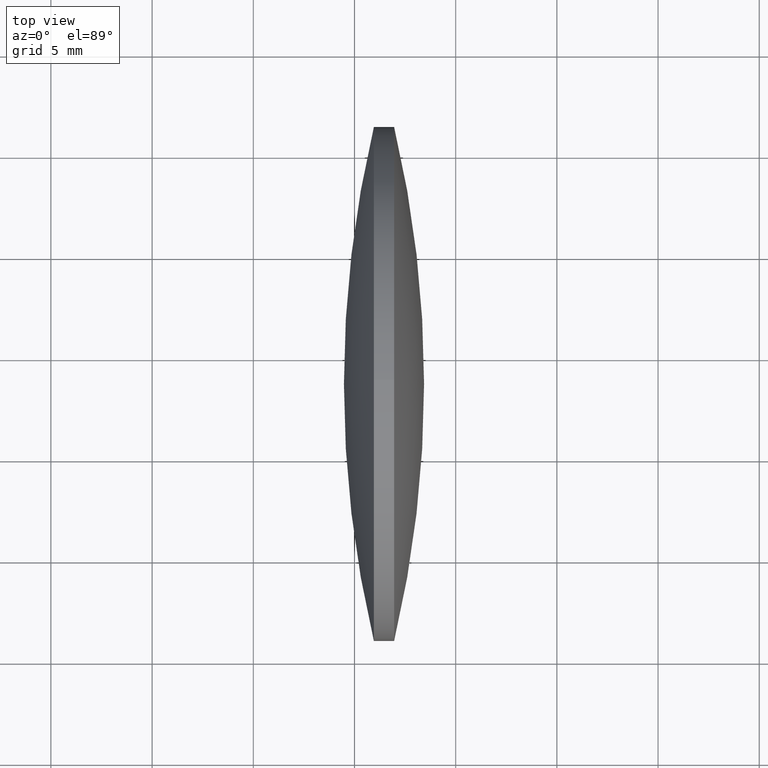
[diagram: clean part render]
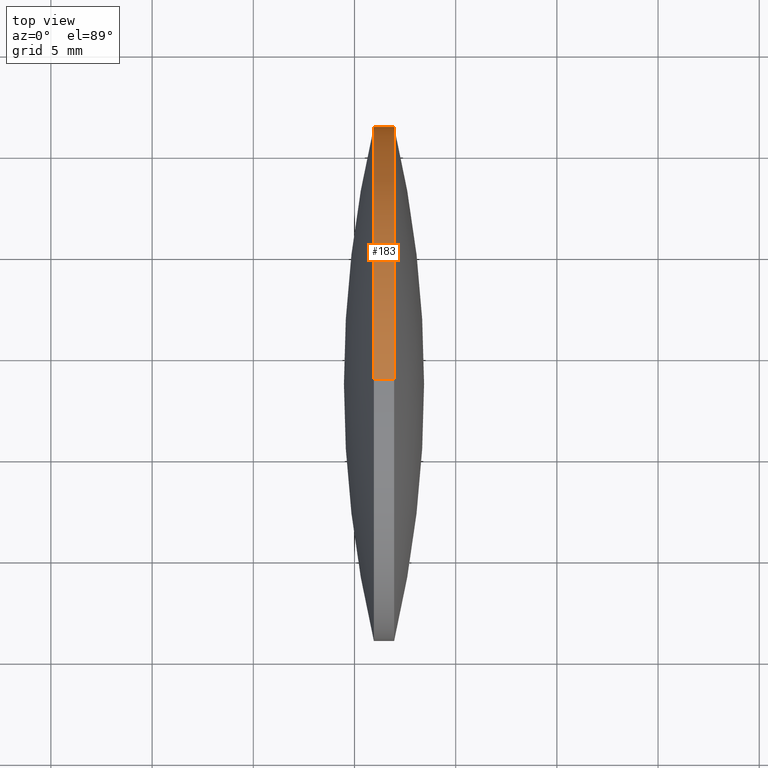
[diagram: same view with one face highlighted and labeled with its STEP entity id]
A machine part, top view. The second image highlights one B-rep face of the part: STEP entity #183.
In plain terms, the highlighted cylindrical surface (partial cylindrical patch) has radius 12.7 mm, axis along (-1, -0, -0).
Its self-contained STEP definition (entity closure, byte-faithful):
#3 = DIRECTION ( 'NONE',  ( 0.0000000000000000000, 0.0000000000000000000, 1.000000000000000000 ) ) ;
#9 = DIRECTION ( 'NONE',  ( 0.0000000000000000000, 0.0000000000000000000, 1.000000000000000000 ) ) ;
#16 = CARTESIAN_POINT ( 'NONE',  ( 79.30540135083715800, 48.61611302318478100, 12.69999999999999600 ) ) ;
#17 = AXIS2_PLACEMENT_3D ( 'NONE', #175, #64, #303 ) ;
#18 = AXIS2_PLACEMENT_3D ( 'NONE', #24, #50, #141 ) ;
#24 = CARTESIAN_POINT ( 'NONE',  ( 79.30540135083715800, 48.61611302318478100, 0.0000000000000000000 ) ) ;
#34 = ORIENTED_EDGE ( 'NONE', *, *, #168, .T. ) ;
#37 = AXIS2_PLACEMENT_3D ( 'NONE', #251, #89, #3 ) ;
#48 = VERTEX_POINT ( 'NONE', #247 ) ;
#49 = ORIENTED_EDGE ( 'NONE', *, *, #269, .F. ) ;
#50 = DIRECTION ( 'NONE',  ( -1.000000000000000000, -0.0000000000000000000, -0.0000000000000000000 ) ) ;
#53 = VERTEX_POINT ( 'NONE', #215 ) ;
#59 = VERTEX_POINT ( 'NONE', #160 ) ;
#64 = DIRECTION ( 'NONE',  ( -1.000000000000000000, -0.0000000000000000000, -0.0000000000000000000 ) ) ;
#68 = EDGE_CURVE ( 'NONE', #295, #185, #208, .T. ) ;
#69 = CARTESIAN_POINT ( 'NONE',  ( 86.95819277466255000, 48.61611302318478100, -12.69999999999999600 ) ) ;
#74 = AXIS2_PLACEMENT_3D ( 'NONE', #272, #190, #9 ) ;
#79 = ORIENTED_EDGE ( 'NONE', *, *, #290, .F. ) ;
#81 = CIRCLE ( 'NONE', #17, 12.69999999999999600 ) ;
#83 = CARTESIAN_POINT ( 'NONE',  ( 79.30540135083715800, 48.61611302318478100, -12.69999999999999600 ) ) ;
#84 = CIRCLE ( 'NONE', #138, 12.69999999999999600 ) ;
#88 = CARTESIAN_POINT ( 'NONE',  ( 85.95819477466253000, 48.61611302318478100, 0.0000000000000000000 ) ) ;
#89 = DIRECTION ( 'NONE',  ( -1.000000000000000000, -0.0000000000000000000, -0.0000000000000000000 ) ) ;
#109 = CIRCLE ( 'NONE', #37, 12.69999999999999600 ) ;
#138 = AXIS2_PLACEMENT_3D ( 'NONE', #88, #277, #274 ) ;
#140 = ORIENTED_EDGE ( 'NONE', *, *, #328, .F. ) ;
#141 = DIRECTION ( 'NONE',  ( 0.0000000000000000000, 0.0000000000000000000, 1.000000000000000000 ) ) ;
#160 = CARTESIAN_POINT ( 'NONE',  ( 85.95819477466253000, 48.61611302318478100, 12.69999999999999600 ) ) ;
#166 = CARTESIAN_POINT ( 'NONE',  ( 86.95819277466255000, 48.61611302318478100, 12.69999999999999600 ) ) ;
#168 = EDGE_CURVE ( 'NONE', #321, #53, #238, .T. ) ;
#175 = CARTESIAN_POINT ( 'NONE',  ( 85.95819477466253000, 48.61611302318478100, 0.0000000000000000000 ) ) ;
#183 = ADVANCED_FACE ( 'NONE', ( #302 ), #199, .T. ) ;
#185 = VERTEX_POINT ( 'NONE', #196 ) ;
#190 = DIRECTION ( 'NONE',  ( -1.000000000000000000, -0.0000000000000000000, -0.0000000000000000000 ) ) ;
#196 = CARTESIAN_POINT ( 'NONE',  ( 85.95819477466253000, 48.61611302318478100, -12.69999999999999600 ) ) ;
#199 = CYLINDRICAL_SURFACE ( 'NONE', #18, 12.69999999999999600 ) ;
#208 = LINE ( 'NONE', #83, #231 ) ;
#213 = ORIENTED_EDGE ( 'NONE', *, *, #219, .T. ) ;
#215 = CARTESIAN_POINT ( 'NONE',  ( 86.95819277466255000, 61.31611302318478400, 1.555301434917136300E-015 ) ) ;
#219 = EDGE_CURVE ( 'NONE', #53, #295, #109, .T. ) ;
#231 = VECTOR ( 'NONE', #345, 1000.000000000000000 ) ;
#232 = DIRECTION ( 'NONE',  ( -1.000000000000000000, -0.0000000000000000000, -0.0000000000000000000 ) ) ;
#238 = CIRCLE ( 'NONE', #74, 12.69999999999999600 ) ;
#247 = CARTESIAN_POINT ( 'NONE',  ( 85.95819477466253000, 61.31611302318474800, 0.0000000000000000000 ) ) ;
#251 = CARTESIAN_POINT ( 'NONE',  ( 86.95819277466255000, 48.61611302318478100, 0.0000000000000000000 ) ) ;
#269 = EDGE_CURVE ( 'NONE', #59, #48, #84, .T. ) ;
#270 = EDGE_LOOP ( 'NONE', ( #213, #324, #79, #49, #140, #34 ) ) ;
#272 = CARTESIAN_POINT ( 'NONE',  ( 86.95819277466255000, 48.61611302318478100, 0.0000000000000000000 ) ) ;
#274 = DIRECTION ( 'NONE',  ( 0.0000000000000000000, 0.0000000000000000000, 1.000000000000000000 ) ) ;
#277 = DIRECTION ( 'NONE',  ( -1.000000000000000000, -0.0000000000000000000, -0.0000000000000000000 ) ) ;
#290 = EDGE_CURVE ( 'NONE', #48, #185, #81, .T. ) ;
#294 = LINE ( 'NONE', #16, #323 ) ;
#295 = VERTEX_POINT ( 'NONE', #69 ) ;
#302 = FACE_OUTER_BOUND ( 'NONE', #270, .T. ) ;
#303 = DIRECTION ( 'NONE',  ( 0.0000000000000000000, 0.0000000000000000000, 1.000000000000000000 ) ) ;
#321 = VERTEX_POINT ( 'NONE', #166 ) ;
#323 = VECTOR ( 'NONE', #232, 1000.000000000000000 ) ;
#324 = ORIENTED_EDGE ( 'NONE', *, *, #68, .T. ) ;
#328 = EDGE_CURVE ( 'NONE', #321, #59, #294, .T. ) ;
#345 = DIRECTION ( 'NONE',  ( -1.000000000000000000, -0.0000000000000000000, -0.0000000000000000000 ) ) ;